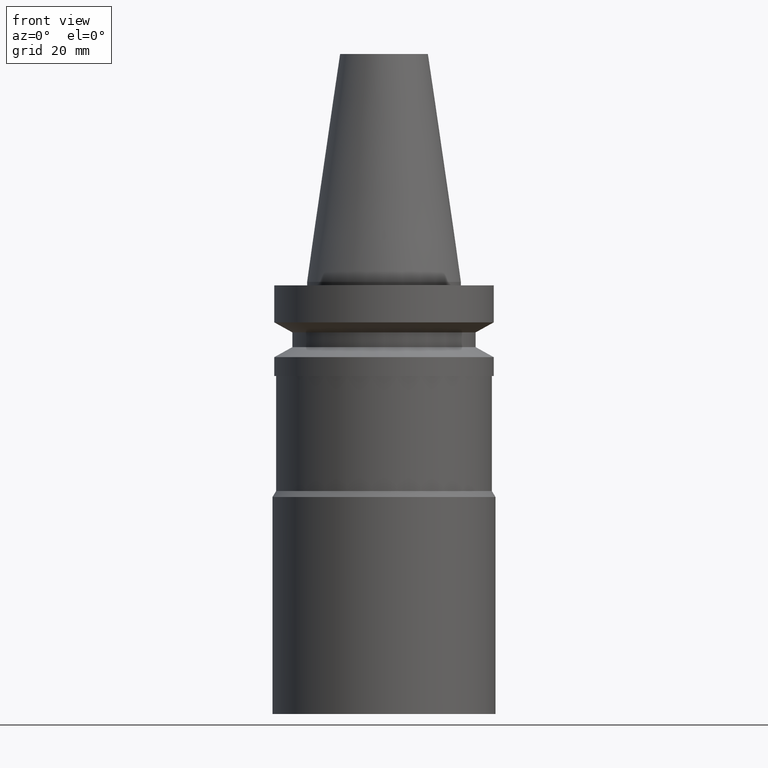
[diagram: clean part render]
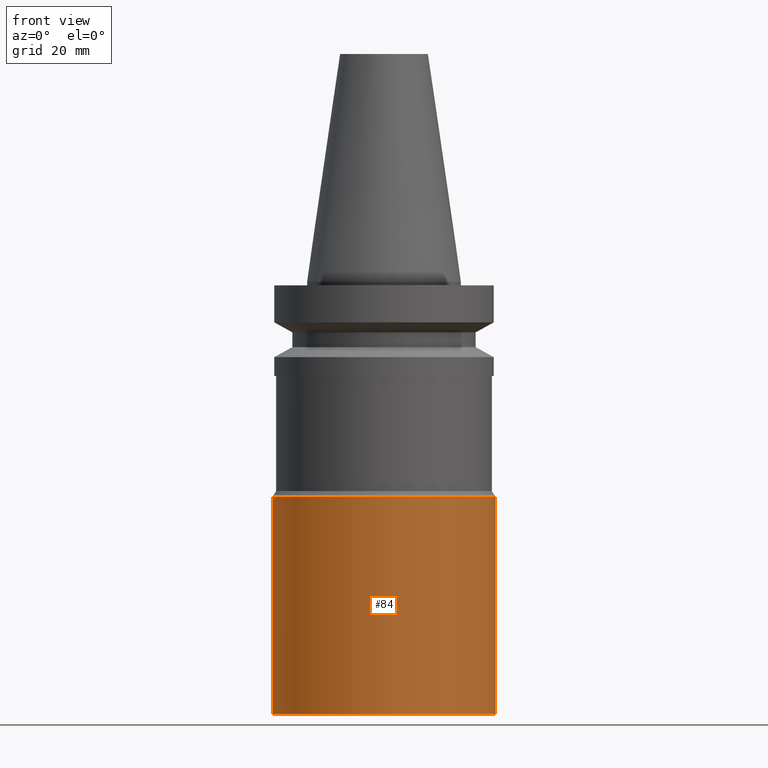
[diagram: same view with one face highlighted and labeled with its STEP entity id]
A machine part, front view. The second image highlights one B-rep face of the part: STEP entity #84.
In plain terms, the highlighted cylindrical surface (bore or boss wall) has radius 32 mm, axis along (-0, -0, 1).
Its self-contained STEP definition (entity closure, byte-faithful):
#84=ADVANCED_FACE('',(#117,#118),#119,.T.);
#117=FACE_BOUND('',#157,.T.);
#118=FACE_BOUND('',#158,.T.);
#119=CYLINDRICAL_SURFACE('',#159,32.0);
#157=EDGE_LOOP('',(#215));
#158=EDGE_LOOP('',(#216));
#159=AXIS2_PLACEMENT_3D('',#217,#218,#219);
#215=ORIENTED_EDGE('',*,*,#248,.F.);
#216=ORIENTED_EDGE('',*,*,#247,.T.);
#217=CARTESIAN_POINT('',(5.6864040380885E-015,1.1372808076177E-014,-92.866025405));
#218=DIRECTION('',(-6.12323399573677E-017,-1.22464679914735E-016,1.0));
#219=DIRECTION('',(-1.23259516440783E-032,1.0,1.22464679914735E-016));
#247=EDGE_CURVE('',#269,#269,#270,.T.);
#248=EDGE_CURVE('',#271,#271,#272,.T.);
#269=VERTEX_POINT('',#295);
#270=CIRCLE('',#296,32.0);
#271=VERTEX_POINT('',#297);
#272=CIRCLE('',#298,32.0);
#295=CARTESIAN_POINT('',(3.77999792146341E-015,32.0,-61.73205081));
#296=AXIS2_PLACEMENT_3D('',#330,#331,#332);
#297=CARTESIAN_POINT('',(7.59281015471359E-015,32.0,-124.0));
#298=AXIS2_PLACEMENT_3D('',#333,#334,#335);
#330=CARTESIAN_POINT('',(3.77999792146341E-015,7.55999584292682E-015,-61.73205081));
#331=DIRECTION('',(6.12323399573677E-017,1.22464679914735E-016,-1.0));
#332=DIRECTION('',(-1.23259516440783E-032,1.0,1.22464679914735E-016));
#333=CARTESIAN_POINT('',(7.59281015471359E-015,1.51856203094272E-014,-124.0));
#334=DIRECTION('',(6.12323399573677E-017,1.22464679914735E-016,-1.0));
#335=DIRECTION('',(-1.23259516440783E-032,1.0,1.22464679914735E-016));